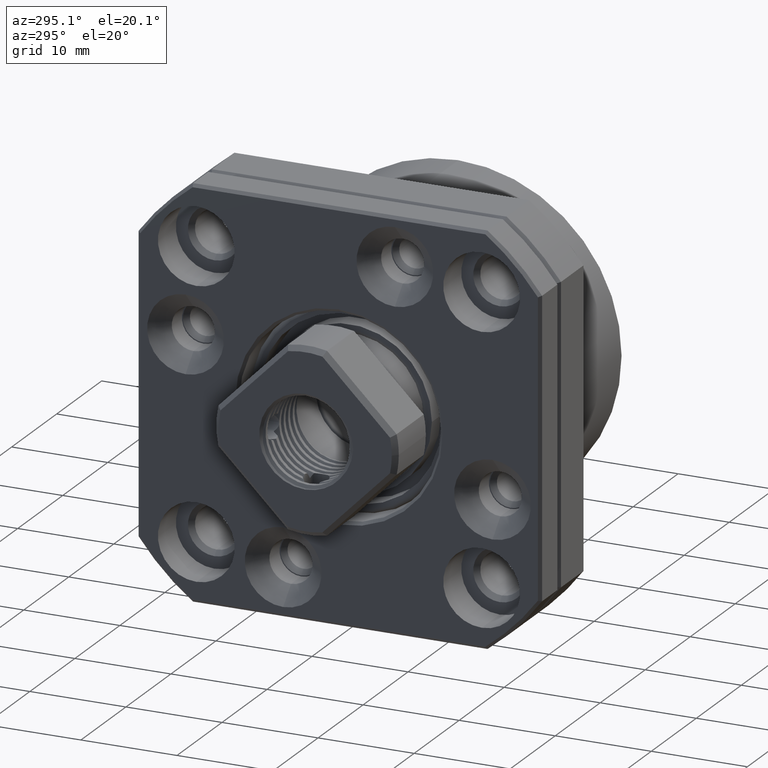
[diagram: clean part render]
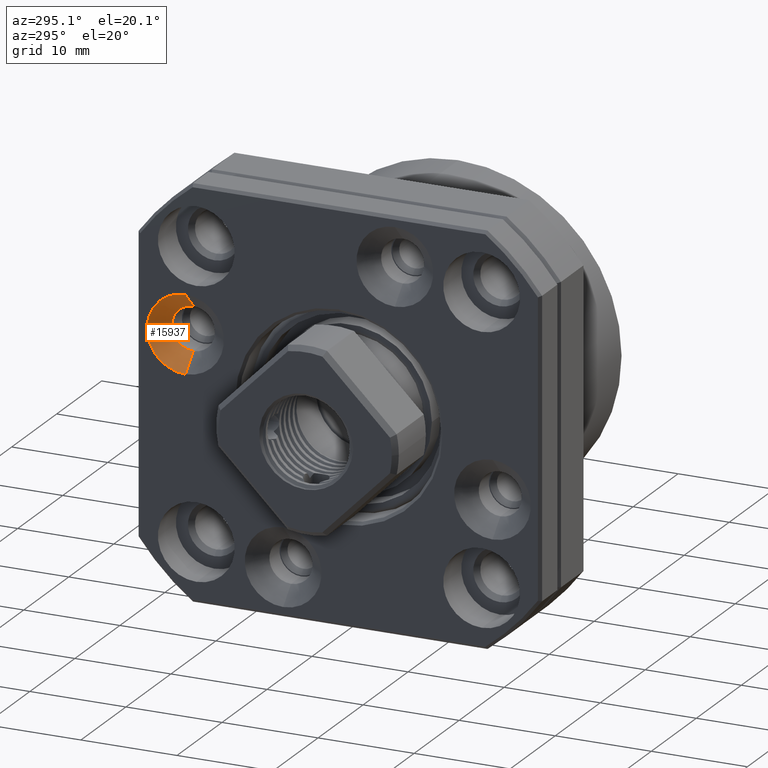
[diagram: same view with one face highlighted and labeled with its STEP entity id]
A machine part, auxiliary view. The second image highlights one B-rep face of the part: STEP entity #15937.
In plain terms, the highlighted conical surface has half-angle 45 deg.
Its self-contained STEP definition (entity closure, byte-faithful):
#193 = EDGE_CURVE ( 'NONE', #274, #247, #19231, .T. ) ;
#202 = VERTEX_POINT ( 'NONE', #19277 ) ;
#247 = VERTEX_POINT ( 'NONE', #19332 ) ;
#269 = VERTEX_POINT ( 'NONE', #19352 ) ;
#274 = VERTEX_POINT ( 'NONE', #19409 ) ;
#275 = EDGE_CURVE ( 'NONE', #269, #202, #19404, .T. ) ;
#1978 = DIRECTION ( 'NONE',  ( 0.0000000000000000000, 0.0000000000000000000, 1.000000000000000000 ) ) ;
#1979 = DIRECTION ( 'NONE',  ( -1.000000000000000000, 0.0000000000000000000, 0.0000000000000000000 ) ) ;
#1980 = CARTESIAN_POINT ( 'NONE',  ( -4.000000000000000900, 15.97477455336050100, 5.814342436536222200 ) ) ;
#1981 = AXIS2_PLACEMENT_3D ( 'NONE', #1980, #1979, #1978 ) ;
#1982 = CIRCLE ( 'NONE', #1981, 3.999999999999998200 ) ;
#2386 = DIRECTION ( 'NONE',  ( 0.0000000000000000000, 0.0000000000000000000, 1.000000000000000000 ) ) ;
#2387 = DIRECTION ( 'NONE',  ( -1.000000000000000000, 0.0000000000000000000, 0.0000000000000000000 ) ) ;
#2388 = CARTESIAN_POINT ( 'NONE',  ( -4.000000000000000900, 15.97477455336050100, 5.814342436536222200 ) ) ;
#2389 = AXIS2_PLACEMENT_3D ( 'NONE', #2388, #2387, #2386 ) ;
#2390 = CONICAL_SURFACE ( 'NONE', #2389, 3.999999999999998200, 0.7853981633974476100 ) ;
#2391 = FACE_OUTER_BOUND ( 'NONE', #15938, .T. ) ;
#2392 = DIRECTION ( 'NONE',  ( 0.0000000000000000000, 0.0000000000000000000, 1.000000000000000000 ) ) ;
#2393 = DIRECTION ( 'NONE',  ( -1.000000000000000000, 0.0000000000000000000, 0.0000000000000000000 ) ) ;
#2394 = CARTESIAN_POINT ( 'NONE',  ( -2.249999999999998700, 15.97477455336050100, 5.814342436536222200 ) ) ;
#2395 = AXIS2_PLACEMENT_3D ( 'NONE', #2394, #2393, #2392 ) ;
#2400 = CIRCLE ( 'NONE', #2395, 2.250000000000000400 ) ;
#15676 = EDGE_CURVE ( 'NONE', #202, #247, #1982, .T. ) ;
#15936 = EDGE_CURVE ( 'NONE', #269, #274, #2400, .T. ) ;
#15937 = ADVANCED_FACE ( 'NONE', ( #2391 ), #2390, .F. ) ;
#15938 = EDGE_LOOP ( 'NONE', ( #15939, #15940, #15941, #15942 ) ) ;
#15939 = ORIENTED_EDGE ( 'NONE', *, *, #193, .F. ) ;
#15940 = ORIENTED_EDGE ( 'NONE', *, *, #15936, .F. ) ;
#15941 = ORIENTED_EDGE ( 'NONE', *, *, #275, .T. ) ;
#15942 = ORIENTED_EDGE ( 'NONE', *, *, #15676, .T. ) ;
#19228 = DIRECTION ( 'NONE',  ( -0.7071067811865480200, 3.613589259768539200E-016, -0.7071067811865470200 ) ) ;
#19229 = VECTOR ( 'NONE', #19228, 1000.000000000000000 ) ;
#19230 = CARTESIAN_POINT ( 'NONE',  ( -4.000000000000000900, 15.97477455336050400, 1.814342436536223100 ) ) ;
#19231 = LINE ( 'NONE', #19230, #19229 ) ;
#19277 = CARTESIAN_POINT ( 'NONE',  ( -4.000000000000000900, 15.97477455336050100, 9.814342436536220400 ) ) ;
#19332 = CARTESIAN_POINT ( 'NONE',  ( -4.000000000000000900, 15.97477455336050400, 1.814342436536223100 ) ) ;
#19352 = CARTESIAN_POINT ( 'NONE',  ( -2.249999999999998700, 15.97477455336050100, 8.064342436536222200 ) ) ;
#19401 = DIRECTION ( 'NONE',  ( -0.7071067811865480200, -2.747661802696604400E-016, 0.7071067811865470200 ) ) ;
#19402 = VECTOR ( 'NONE', #19401, 1000.000000000000000 ) ;
#19403 = CARTESIAN_POINT ( 'NONE',  ( -4.000000000000000900, 15.97477455336050100, 9.814342436536220400 ) ) ;
#19404 = LINE ( 'NONE', #19403, #19402 ) ;
#19409 = CARTESIAN_POINT ( 'NONE',  ( -2.249999999999998700, 15.97477455336050100, 3.564342436536222600 ) ) ;